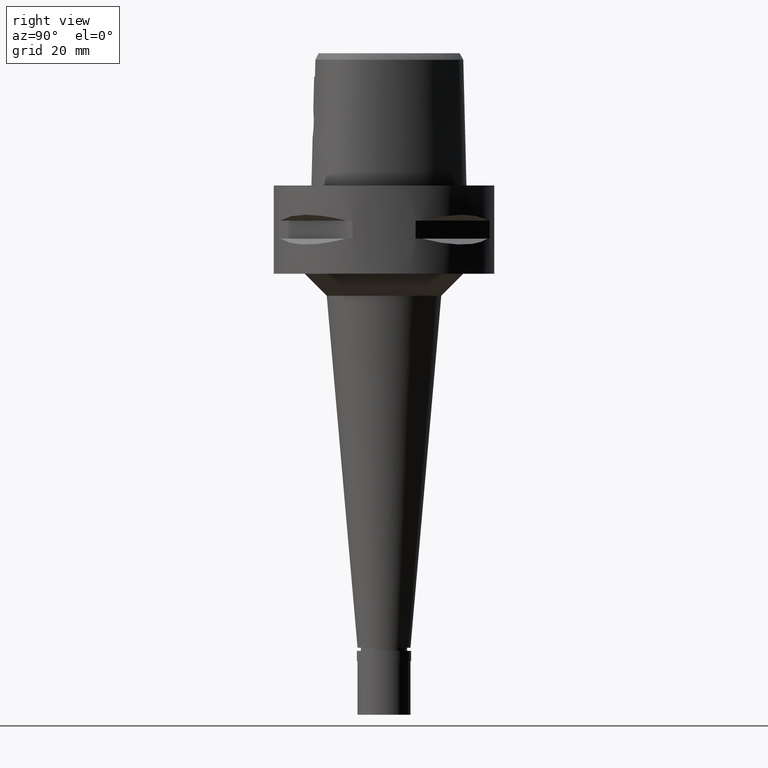
[diagram: clean part render]
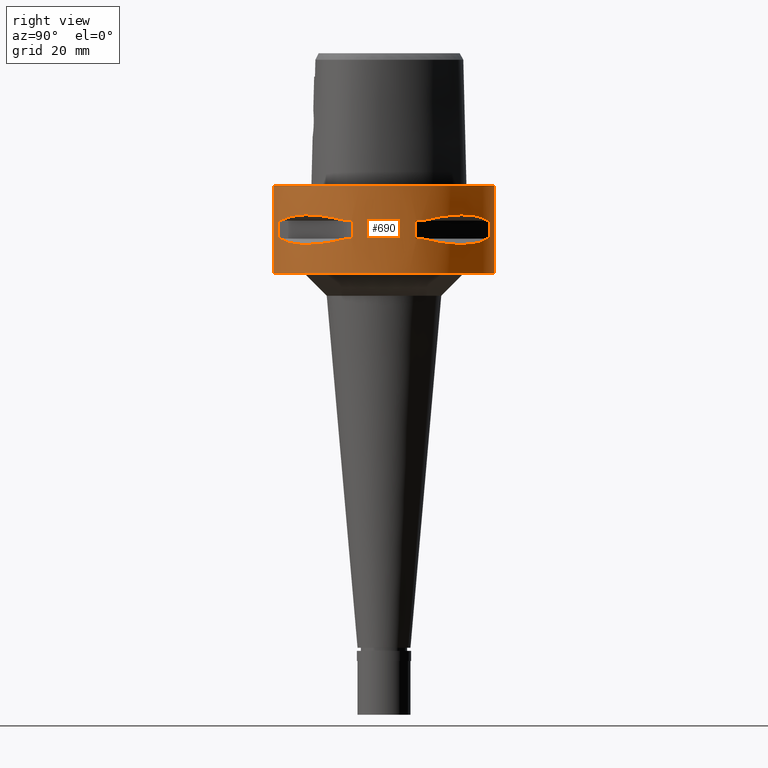
[diagram: same view with one face highlighted and labeled with its STEP entity id]
A machine part, right view. The second image highlights one B-rep face of the part: STEP entity #690.
In plain terms, the highlighted cylindrical surface (partial cylindrical patch) has radius 25 mm, axis along (0, 0, -1).
Its self-contained STEP definition (entity closure, byte-faithful):
#34 = CARTESIAN_POINT ( 'NONE',  ( 13.74471461761685198, 20.88268233906084248, -13.08031795579737455 ) ) ;
#55 = CARTESIAN_POINT ( 'NONE',  ( 21.09754014381971388, 13.41274673326716282, -13.03250796600833716 ) ) ;
#73 = CARTESIAN_POINT ( 'NONE',  ( 0.0000000000000000000, 1.295676313497999978E-14, -12.05000000000000071 ) ) ;
#135 = DIRECTION ( 'NONE',  ( 0.0000000000000000000, 0.0000000000000000000, 1.000000000000000000 ) ) ;
#143 = CARTESIAN_POINT ( 'NONE',  ( 0.0000000000000000000, -25.00000000000000000, 0.0000000000000000000 ) ) ;
#210 = CARTESIAN_POINT ( 'NONE',  ( 13.55971422200820520, -21.00321793043535479, -13.05400030967370206 ) ) ;
#237 = CIRCLE ( 'NONE', #3558, 24.99999999999999645 ) ;
#247 = VECTOR ( 'NONE', #3154, 1000.000000000000000 ) ;
#270 = CARTESIAN_POINT ( 'NONE',  ( 7.159921374230999724, -23.95277699797999915, -12.05000000000000071 ) ) ;
#283 = DIRECTION ( 'NONE',  ( 0.0000000000000000000, 1.000000000000000000, 0.0000000000000000000 ) ) ;
#322 = CARTESIAN_POINT ( 'NONE',  ( 23.45715880140000209, -8.646484890751999330, -7.949999999998000000 ) ) ;
#343 = ORIENTED_EDGE ( 'NONE', *, *, #4472, .T. ) ;
#352 = CARTESIAN_POINT ( 'NONE',  ( 23.13678124604550845, 9.515641234313701347, -12.27403800213050111 ) ) ;
#355 = VERTEX_POINT ( 'NONE', #270 ) ;
#388 = FACE_OUTER_BOUND ( 'NONE', #3745, .T. ) ;
#405 = CARTESIAN_POINT ( 'NONE',  ( 21.41803043591995959, 12.89853354823032738, -12.95342092614324869 ) ) ;
#417 = CARTESIAN_POINT ( 'NONE',  ( 7.159921374235000080, -23.95277699797999915, -7.950000000000000178 ) ) ;
#431 = DIRECTION ( 'NONE',  ( 0.9581110799190402094, 0.2863968549694120291, 0.0000000000000000000 ) ) ;
#502 = CIRCLE ( 'NONE', #2275, 24.99999999999999645 ) ;
#526 = VERTEX_POINT ( 'NONE', #4646 ) ;
#561 = B_SPLINE_CURVE_WITH_KNOTS ( 'NONE', 3,
 ( #4273, #606, #2033, #4312, #927, #2078, #3568, #2765, #3220, #991 ),
 .UNSPECIFIED., .F., .F.,
 ( 4, 2, 2, 2, 4 ),
 ( 0.0000000000000000000, 0.2500000000000000000, 0.5000000000000000000, 0.7500000000000000000, 1.000000000000000000 ),
 .UNSPECIFIED. ) ;
#606 = CARTESIAN_POINT ( 'NONE',  ( 10.36314631860327395, -22.82438450745536684, -7.507504930524173226 ) ) ;
#620 = VERTEX_POINT ( 'NONE', #810 ) ;
#631 = AXIS2_PLACEMENT_3D ( 'NONE', #4162, #135, #1218 ) ;
#633 = CARTESIAN_POINT ( 'NONE',  ( 0.0000000000000000000, 25.00000000000000000, 0.0000000000000000000 ) ) ;
#690 = ADVANCED_FACE ( 'NONE', ( #388, #4042, #2572 ), #1094, .T. ) ;
#721 = ORIENTED_EDGE ( 'NONE', *, *, #3770, .T. ) ;
#734 = DIRECTION ( 'NONE',  ( 0.0000000000000000000, -1.000000000000000000, 0.0000000000000000000 ) ) ;
#768 = CARTESIAN_POINT ( 'NONE',  ( 23.45715880140000209, 8.646484890756999775, -12.05000000000000071 ) ) ;
#797 = CARTESIAN_POINT ( 'NONE',  ( 13.67544437571146609, 20.92801700160250533, -13.07054629644086674 ) ) ;
#807 = CARTESIAN_POINT ( 'NONE',  ( 0.0000000000000000000, 1.295676313497999978E-14, -20.00000000000000000 ) ) ;
#810 = CARTESIAN_POINT ( 'NONE',  ( 0.0000000000000000000, -25.00000000000000000, 0.0000000000000000000 ) ) ;
#824 = CARTESIAN_POINT ( 'NONE',  ( 8.646484890751999330, 23.45715880140000209, -12.05000000000000071 ) ) ;
#853 = ORIENTED_EDGE ( 'NONE', *, *, #2896, .F. ) ;
#860 = CARTESIAN_POINT ( 'NONE',  ( 0.0000000000000000000, 25.00000000000000000, 0.0000000000000000000 ) ) ;
#888 = AXIS2_PLACEMENT_3D ( 'NONE', #73, #1608, #1561 ) ;
#915 = ORIENTED_EDGE ( 'NONE', *, *, #1397, .T. ) ;
#927 = CARTESIAN_POINT ( 'NONE',  ( 16.42437865150963816, -18.93096040781772871, -6.622505547251375191 ) ) ;
#991 = CARTESIAN_POINT ( 'NONE',  ( 23.45715880140000209, -8.646484890751999330, -7.949999999998000000 ) ) ;
#995 = CARTESIAN_POINT ( 'NONE',  ( 0.0000000000000000000, 1.295676313497999978E-14, 0.0000000000000000000 ) ) ;
#996 = DIRECTION ( 'NONE',  ( 0.0000000000000000000, 0.0000000000000000000, -1.000000000000000000 ) ) ;
#1010 = DIRECTION ( 'NONE',  ( 0.0000000000000000000, 0.0000000000000000000, -1.000000000000000000 ) ) ;
#1014 = AXIS2_PLACEMENT_3D ( 'NONE', #807, #4596, #3076 ) ;
#1016 = EDGE_CURVE ( 'NONE', #2160, #355, #2854, .T. ) ;
#1028 = VERTEX_POINT ( 'NONE', #2132 ) ;
#1043 = EDGE_CURVE ( 'NONE', #3849, #620, #2961, .T. ) ;
#1054 = VERTEX_POINT ( 'NONE', #1308 ) ;
#1084 = AXIS2_PLACEMENT_3D ( 'NONE', #3962, #1010, #2103 ) ;
#1094 = CYLINDRICAL_SURFACE ( 'NONE', #1410, 25.00000000000000000 ) ;
#1111 = CARTESIAN_POINT ( 'NONE',  ( 21.99328990740119139, -12.03062603421341770, -12.83394786307044022 ) ) ;
#1135 = CARTESIAN_POINT ( 'NONE',  ( 21.20561591939435786, 13.24197703503935486, -13.00691327926270446 ) ) ;
#1136 = DIRECTION ( 'NONE',  ( 0.0000000000000000000, 0.0000000000000000000, 1.000000000000000000 ) ) ;
#1157 = EDGE_CURVE ( 'NONE', #3984, #3000, #1573, .T. ) ;
#1160 = CARTESIAN_POINT ( 'NONE',  ( 21.82791133047632215, 12.20403021319857828, -12.83722430139150994 ) ) ;
#1165 = CARTESIAN_POINT ( 'NONE',  ( 7.159921374230999724, 23.95277699797999915, -12.05000000000000071 ) ) ;
#1185 = CARTESIAN_POINT ( 'NONE',  ( 10.36318218122701751, 22.82437128822296657, -7.507495686402388735 ) ) ;
#1218 = DIRECTION ( 'NONE',  ( 0.2863968549694120291, -0.9581110799190402094, 0.0000000000000000000 ) ) ;
#1223 = CARTESIAN_POINT ( 'NONE',  ( 0.0000000000000000000, 1.295676313497999978E-14, -12.05000000000000071 ) ) ;
#1270 = CIRCLE ( 'NONE', #888, 25.00000000000001066 ) ;
#1304 = CARTESIAN_POINT ( 'NONE',  ( 16.43106916202457057, -18.92421359264944769, -13.37747608848233760 ) ) ;
#1308 = CARTESIAN_POINT ( 'NONE',  ( 7.159921374235000080, 23.95277699797999915, -12.05000000000000071 ) ) ;
#1324 = CARTESIAN_POINT ( 'NONE',  ( 13.24197703503267931, -21.20561591939681634, -13.00691327926098495 ) ) ;
#1356 = CARTESIAN_POINT ( 'NONE',  ( 9.515641234297431694, -23.13678124605150188, -12.27403800212630536 ) ) ;
#1385 = EDGE_CURVE ( 'NONE', #620, #1028, #3445, .T. ) ;
#1394 = CARTESIAN_POINT ( 'NONE',  ( 20.97251445226583755, -13.60713573003076071, -13.06082541678112641 ) ) ;
#1397 = EDGE_CURVE ( 'NONE', #2321, #355, #1270, .T. ) ;
#1399 = DIRECTION ( 'NONE',  ( 0.0000000000000000000, 0.0000000000000000000, -1.000000000000000000 ) ) ;
#1410 = AXIS2_PLACEMENT_3D ( 'NONE', #2650, #1868, #734 ) ;
#1425 = DIRECTION ( 'NONE',  ( 0.0000000000000000000, 0.0000000000000000000, 1.000000000000000000 ) ) ;
#1461 = CARTESIAN_POINT ( 'NONE',  ( 13.62920640916679993, 20.95817024473859291, -13.06397973560673265 ) ) ;
#1496 = VERTEX_POINT ( 'NONE', #3112 ) ;
#1519 = CARTESIAN_POINT ( 'NONE',  ( 12.03062603423778754, 21.99328990739221013, -12.83394786307672675 ) ) ;
#1542 = CARTESIAN_POINT ( 'NONE',  ( 13.60713573003037880, 20.97251445226597966, -13.06082541678103404 ) ) ;
#1554 = AXIS2_PLACEMENT_3D ( 'NONE', #4732, #1425, #4777 ) ;
#1561 = DIRECTION ( 'NONE',  ( 0.3458593956303108730, -0.9382863520558295534, 0.0000000000000000000 ) ) ;
#1567 = CARTESIAN_POINT ( 'NONE',  ( 18.93096040781766831, 16.42437865150973408, -6.622505547255374658 ) ) ;
#1568 = CARTESIAN_POINT ( 'NONE',  ( 0.0000000000000000000, 1.295676313497999978E-14, -7.950000000000000178 ) ) ;
#1573 = CIRCLE ( 'NONE', #2887, 25.00000000000001066 ) ;
#1608 = DIRECTION ( 'NONE',  ( 0.0000000000000000000, 0.0000000000000000000, -1.000000000000000000 ) ) ;
#1622 = VERTEX_POINT ( 'NONE', #3257 ) ;
#1627 = VERTEX_POINT ( 'NONE', #4380 ) ;
#1647 = CARTESIAN_POINT ( 'NONE',  ( 13.41274673326371314, -21.09754014382099285, -13.03250796600744721 ) ) ;
#1676 = DIRECTION ( 'NONE',  ( 0.3458593956303108730, 0.9382863520558295534, 0.0000000000000000000 ) ) ;
#1690 = CARTESIAN_POINT ( 'NONE',  ( 0.0000000000000000000, 1.295676313497999978E-14, -12.05000000000000071 ) ) ;
#1696 = VERTEX_POINT ( 'NONE', #322 ) ;
#1735 = EDGE_CURVE ( 'NONE', #3753, #2692, #3231, .T. ) ;
#1751 = EDGE_CURVE ( 'NONE', #4287, #3984, #2834, .T. ) ;
#1759 = VERTEX_POINT ( 'NONE', #4769 ) ;
#1832 = CARTESIAN_POINT ( 'NONE',  ( 14.85488513038957592, 20.11654071401955335, -13.22076716108393413 ) ) ;
#1855 = CARTESIAN_POINT ( 'NONE',  ( 21.05082155772089436, 13.48572973711263323, -13.04323036965343618 ) ) ;
#1863 = ORIENTED_EDGE ( 'NONE', *, *, #1751, .T. ) ;
#1868 = DIRECTION ( 'NONE',  ( 0.0000000000000000000, 0.0000000000000000000, -1.000000000000000000 ) ) ;
#1883 = CARTESIAN_POINT ( 'NONE',  ( 21.01958685664017068, 13.53433973752500918, -13.05032380590188446 ) ) ;
#1905 = CARTESIAN_POINT ( 'NONE',  ( 20.02826730452214932, 15.06560254769159712, -13.27075471794772277 ) ) ;
#1943 = CIRCLE ( 'NONE', #631, 24.99999999999999645 ) ;
#1955 = DIRECTION ( 'NONE',  ( 0.0000000000000000000, 0.0000000000000000000, -1.000000000000000000 ) ) ;
#1998 = EDGE_LOOP ( 'NONE', ( #3221, #853, #4648, #3674, #721, #4456, #4563, #1863 ) ) ;
#1999 = EDGE_CURVE ( 'NONE', #526, #4287, #502, .T. ) ;
#2033 = CARTESIAN_POINT ( 'NONE',  ( 11.99631184310672616, -22.00754773658296060, -7.175632472890621116 ) ) ;
#2057 = CARTESIAN_POINT ( 'NONE',  ( 20.11654071402723432, -14.85488513038430192, -13.22076716108491290 ) ) ;
#2078 = CARTESIAN_POINT ( 'NONE',  ( 18.93096040781768963, -16.42437865150967369, -6.622496303225266168 ) ) ;
#2097 = VERTEX_POINT ( 'NONE', #2181 ) ;
#2099 = CIRCLE ( 'NONE', #1014, 25.00000000000000000 ) ;
#2103 = DIRECTION ( 'NONE',  ( 0.9581110799190402094, -0.2863968549694120291, 0.0000000000000000000 ) ) ;
#2117 = VECTOR ( 'NONE', #2702, 1000.000000000000000 ) ;
#2132 = CARTESIAN_POINT ( 'NONE',  ( 0.0000000000000000000, -25.00000000000000000, -20.00000000000000000 ) ) ;
#2143 = ORIENTED_EDGE ( 'NONE', *, *, #4157, .F. ) ;
#2160 = VERTEX_POINT ( 'NONE', #417 ) ;
#2181 = CARTESIAN_POINT ( 'NONE',  ( 8.646484890751999330, -23.45715880140000209, -7.949999999998000000 ) ) ;
#2223 = CARTESIAN_POINT ( 'NONE',  ( 20.88268233906207172, -13.74471461761599400, -13.08031795579753087 ) ) ;
#2251 = CIRCLE ( 'NONE', #2793, 25.00000000000001066 ) ;
#2270 = CARTESIAN_POINT ( 'NONE',  ( 11.99636231264038777, 22.00752022557070120, -7.175618606705943314 ) ) ;
#2275 = AXIS2_PLACEMENT_3D ( 'NONE', #1568, #1136, #431 ) ;
#2279 = VECTOR ( 'NONE', #4520, 1000.000000000000000 ) ;
#2321 = VERTEX_POINT ( 'NONE', #2329 ) ;
#2329 = CARTESIAN_POINT ( 'NONE',  ( 8.646484890756999775, -23.45715880140000209, -12.05000000000000071 ) ) ;
#2450 = CARTESIAN_POINT ( 'NONE',  ( 12.89853354821786624, -21.41803043592453548, -12.95342092614003349 ) ) ;
#2465 = ORIENTED_EDGE ( 'NONE', *, *, #1016, .F. ) ;
#2481 = CIRCLE ( 'NONE', #1084, 24.99999999999999645 ) ;
#2539 = CARTESIAN_POINT ( 'NONE',  ( 23.45715880140000209, 8.646484890751999330, -7.950000000002000355 ) ) ;
#2558 = CIRCLE ( 'NONE', #1554, 25.00000000000001066 ) ;
#2559 = CARTESIAN_POINT ( 'NONE',  ( 22.58788056560981516, 10.78455809748034788, -12.56798337783676267 ) ) ;
#2572 = FACE_BOUND ( 'NONE', #4232, .T. ) ;
#2576 = EDGE_CURVE ( 'NONE', #3849, #2712, #3968, .T. ) ;
#2591 = CARTESIAN_POINT ( 'NONE',  ( 20.77616787493668937, -13.90573822667970916, -13.10257122103325145 ) ) ;
#2614 = CARTESIAN_POINT ( 'NONE',  ( 21.00321793043583796, 13.55971422200765630, -13.05400030967367897 ) ) ;
#2650 = CARTESIAN_POINT ( 'NONE',  ( 0.0000000000000000000, 1.295676313497999978E-14, 5.799999999999999822 ) ) ;
#2692 = VERTEX_POINT ( 'NONE', #4090 ) ;
#2702 = DIRECTION ( 'NONE',  ( 0.0000000000000000000, 0.0000000000000000000, -1.000000000000000000 ) ) ;
#2712 = VERTEX_POINT ( 'NONE', #4729 ) ;
#2746 = VECTOR ( 'NONE', #996, 1000.000000000000000 ) ;
#2755 = DIRECTION ( 'NONE',  ( 0.0000000000000000000, 0.0000000000000000000, -1.000000000000000000 ) ) ;
#2765 = CARTESIAN_POINT ( 'NONE',  ( 22.00752022557064791, -11.99636231264041797, -7.175618606701942959 ) ) ;
#2784 = CARTESIAN_POINT ( 'NONE',  ( 18.30096971348435630, -17.05439749817190176, -13.37751056790094850 ) ) ;
#2793 = AXIS2_PLACEMENT_3D ( 'NONE', #1223, #2755, #3110 ) ;
#2805 = DIRECTION ( 'NONE',  ( 0.2863968549694120291, 0.9581110799190402094, 0.0000000000000000000 ) ) ;
#2816 = B_SPLINE_CURVE_WITH_KNOTS ( 'NONE', 3,
 ( #4615, #1356, #4250, #4658, #2450, #1324, #1647, #3127, #4593, #210, #4295, #1304, #2784, #3892, #2057, #3525, #2591, #2223, #4085, #2871, #1394, #1111, #4360, #2922 ),
 .UNSPECIFIED., .F., .F.,
 ( 4, 1, 1, 1, 1, 1, 2, 2, 2, 1, 1, 1, 1, 1, 2, 2, 4 ),
 ( 0.0000000000000000000, 0.1250000000000068834, 0.1875000000000101308, 0.2187500000000117406, 0.2343750000000125733, 0.2421875000000129341, 0.2460937500000130174, 0.2500000000000131006, 0.5000000000000111022, 0.6250000000000101030, 0.6875000000000099920, 0.7187500000000099920, 0.7343750000000099920, 0.7421875000000098810, 0.7460937500000098810, 0.7500000000000098810, 1.000000000000000000 ),
 .UNSPECIFIED. ) ;
#2827 = ORIENTED_EDGE ( 'NONE', *, *, #2576, .F. ) ;
#2834 = B_SPLINE_CURVE_WITH_KNOTS ( 'NONE', 3,
 ( #4057, #4083, #4108, #4028, #1567, #2993, #4409, #2270, #1185, #3016 ),
 .UNSPECIFIED., .F., .F.,
 ( 4, 2, 2, 2, 4 ),
 ( 0.0000000000000000000, 0.2500000000000000000, 0.5000000000000000000, 0.7500000000000000000, 1.000000000000000000 ),
 .UNSPECIFIED. ) ;
#2854 = LINE ( 'NONE', #4254, #247 ) ;
#2871 = CARTESIAN_POINT ( 'NONE',  ( 20.95817024473895174, -13.62920640916654591, -13.06397973560678061 ) ) ;
#2887 = AXIS2_PLACEMENT_3D ( 'NONE', #3243, #3530, #1676 ) ;
#2896 = EDGE_CURVE ( 'NONE', #1054, #3000, #3457, .T. ) ;
#2922 = CARTESIAN_POINT ( 'NONE',  ( 23.45715880140000209, -8.646484890751999330, -12.05000000000000071 ) ) ;
#2943 = VECTOR ( 'NONE', #3158, 1000.000000000000000 ) ;
#2961 = CIRCLE ( 'NONE', #3811, 25.00000000000000000 ) ;
#2993 = CARTESIAN_POINT ( 'NONE',  ( 16.42437865150966303, 18.93096040781772160, -6.622496303229267411 ) ) ;
#3000 = VERTEX_POINT ( 'NONE', #3434 ) ;
#3016 = CARTESIAN_POINT ( 'NONE',  ( 8.646484890751999330, 23.45715880140000209, -7.950000000002000355 ) ) ;
#3075 = ORIENTED_EDGE ( 'NONE', *, *, #4371, .T. ) ;
#3076 = DIRECTION ( 'NONE',  ( 0.0000000000000000000, -1.000000000000000000, 0.0000000000000000000 ) ) ;
#3110 = DIRECTION ( 'NONE',  ( 0.9382863520558295534, 0.3458593956303108730, 0.0000000000000000000 ) ) ;
#3112 = CARTESIAN_POINT ( 'NONE',  ( 23.95277699797999915, -7.159921374230999724, -7.950000000000000178 ) ) ;
#3125 = ORIENTED_EDGE ( 'NONE', *, *, #4493, .T. ) ;
#3127 = CARTESIAN_POINT ( 'NONE',  ( 13.48572973711064193, -21.05082155772163688, -13.04323036965292637 ) ) ;
#3140 = EDGE_CURVE ( 'NONE', #2097, #1696, #561, .T. ) ;
#3154 = DIRECTION ( 'NONE',  ( 0.0000000000000000000, 0.0000000000000000000, -1.000000000000000000 ) ) ;
#3158 = DIRECTION ( 'NONE',  ( 0.0000000000000000000, 0.0000000000000000000, 1.000000000000000000 ) ) ;
#3176 = LINE ( 'NONE', #4644, #2943 ) ;
#3220 = CARTESIAN_POINT ( 'NONE',  ( 22.82437128822292394, -10.36318218122705304, -7.507495686398388379 ) ) ;
#3221 = ORIENTED_EDGE ( 'NONE', *, *, #1157, .T. ) ;
#3229 = ORIENTED_EDGE ( 'NONE', *, *, #3140, .T. ) ;
#3231 = B_SPLINE_CURVE_WITH_KNOTS ( 'NONE', 3,
 ( #768, #352, #2559, #1160, #405, #1135, #55, #1855, #1883, #2614, #1905, #3330, #3739, #3762, #1832, #3356, #3306, #34, #797, #1461, #1542, #1519, #4134, #824 ),
 .UNSPECIFIED., .F., .F.,
 ( 4, 1, 1, 1, 1, 1, 2, 2, 2, 1, 1, 1, 1, 1, 2, 2, 4 ),
 ( 0.0000000000000000000, 0.1249999999999982236, 0.1874999999999974465, 0.2187499999999970302, 0.2343749999999969469, 0.2421874999999968081, 0.2460937499999968359, 0.2499999999999968914, 0.4999999999999973355, 0.6249999999999973355, 0.6874999999999976685, 0.7187499999999978906, 0.7343749999999980016, 0.7421874999999980016, 0.7460937499999978906, 0.7499999999999978906, 1.000000000000000000 ),
 .UNSPECIFIED. ) ;
#3243 = CARTESIAN_POINT ( 'NONE',  ( 0.0000000000000000000, 1.295676313497999978E-14, -7.950000000000000178 ) ) ;
#3257 = CARTESIAN_POINT ( 'NONE',  ( 23.95277699797999915, -7.159921374235000080, -12.05000000000000071 ) ) ;
#3297 = EDGE_CURVE ( 'NONE', #1622, #1759, #2481, .T. ) ;
#3306 = CARTESIAN_POINT ( 'NONE',  ( 13.90573822668135406, 20.77616787493428774, -13.10257122103294058 ) ) ;
#3330 = CARTESIAN_POINT ( 'NONE',  ( 18.92421359264142211, 16.43106916203626611, -13.37747608848383329 ) ) ;
#3356 = CARTESIAN_POINT ( 'NONE',  ( 14.22535762328483067, 20.56020460723039278, -13.14488865845230592 ) ) ;
#3382 = EDGE_CURVE ( 'NONE', #2321, #1759, #2816, .T. ) ;
#3401 = LINE ( 'NONE', #3765, #3867 ) ;
#3434 = CARTESIAN_POINT ( 'NONE',  ( 7.159921374230999724, 23.95277699797999915, -7.950000000000000178 ) ) ;
#3445 = LINE ( 'NONE', #143, #2117 ) ;
#3457 = LINE ( 'NONE', #1165, #2279 ) ;
#3460 = ORIENTED_EDGE ( 'NONE', *, *, #3382, .F. ) ;
#3523 = DIRECTION ( 'NONE',  ( 0.0000000000000000000, 0.0000000000000000000, -1.000000000000000000 ) ) ;
#3525 = CARTESIAN_POINT ( 'NONE',  ( 20.56020460723486565, -14.22535762328174691, -13.14488865845287080 ) ) ;
#3530 = DIRECTION ( 'NONE',  ( 0.0000000000000000000, 0.0000000000000000000, 1.000000000000000000 ) ) ;
#3558 = AXIS2_PLACEMENT_3D ( 'NONE', #1690, #3523, #2805 ) ;
#3568 = CARTESIAN_POINT ( 'NONE',  ( 20.06074199765220101, -15.02698525049765088, -6.733118915115382741 ) ) ;
#3586 = EDGE_CURVE ( 'NONE', #526, #1627, #3401, .T. ) ;
#3674 = ORIENTED_EDGE ( 'NONE', *, *, #1735, .F. ) ;
#3739 = CARTESIAN_POINT ( 'NONE',  ( 17.05439749817592343, 18.30096971347850499, -13.37751056790020598 ) ) ;
#3745 = EDGE_LOOP ( 'NONE', ( #4065, #3847, #343, #2827 ) ) ;
#3753 = VERTEX_POINT ( 'NONE', #4328 ) ;
#3762 = CARTESIAN_POINT ( 'NONE',  ( 16.07509500019029502, 19.18226349638565509, -13.33749867751885532 ) ) ;
#3765 = CARTESIAN_POINT ( 'NONE',  ( 23.95277699797999915, 7.159921374230999724, -7.950000000000000178 ) ) ;
#3770 = EDGE_CURVE ( 'NONE', #3753, #1627, #2251, .T. ) ;
#3811 = AXIS2_PLACEMENT_3D ( 'NONE', #995, #1399, #283 ) ;
#3847 = ORIENTED_EDGE ( 'NONE', *, *, #1385, .T. ) ;
#3849 = VERTEX_POINT ( 'NONE', #860 ) ;
#3867 = VECTOR ( 'NONE', #1955, 1000.000000000000000 ) ;
#3892 = CARTESIAN_POINT ( 'NONE',  ( 19.18226349639588690, -16.07509500018327131, -13.33749867752016449 ) ) ;
#3962 = CARTESIAN_POINT ( 'NONE',  ( 0.0000000000000000000, 1.295676313497999978E-14, -12.05000000000000071 ) ) ;
#3968 = LINE ( 'NONE', #633, #2746 ) ;
#3984 = VERTEX_POINT ( 'NONE', #4669 ) ;
#4028 = CARTESIAN_POINT ( 'NONE',  ( 20.06077645874980675, 15.02693924547213378, -6.733132781308060366 ) ) ;
#4042 = FACE_BOUND ( 'NONE', #1998, .T. ) ;
#4057 = CARTESIAN_POINT ( 'NONE',  ( 23.45715880140000209, 8.646484890751999330, -7.950000000002000355 ) ) ;
#4065 = ORIENTED_EDGE ( 'NONE', *, *, #1043, .T. ) ;
#4083 = CARTESIAN_POINT ( 'NONE',  ( 22.82438450745534908, 10.36314631860334323, -7.507504930528175358 ) ) ;
#4085 = CARTESIAN_POINT ( 'NONE',  ( 20.92801700160322298, -13.67544437571097404, -13.07054629644096444 ) ) ;
#4090 = CARTESIAN_POINT ( 'NONE',  ( 8.646484890751999330, 23.45715880140000209, -12.05000000000000071 ) ) ;
#4108 = CARTESIAN_POINT ( 'NONE',  ( 22.00754773658294994, 11.99631184310677234, -7.175632472894622360 ) ) ;
#4134 = CARTESIAN_POINT ( 'NONE',  ( 10.38516041958474645, 22.81626994451295332, -12.49816953211793802 ) ) ;
#4157 = EDGE_CURVE ( 'NONE', #1622, #1496, #3176, .T. ) ;
#4162 = CARTESIAN_POINT ( 'NONE',  ( 0.0000000000000000000, 1.295676313497999978E-14, -7.950000000000000178 ) ) ;
#4193 = ORIENTED_EDGE ( 'NONE', *, *, #3297, .T. ) ;
#4232 = EDGE_LOOP ( 'NONE', ( #3075, #2143, #4193, #3460, #915, #2465, #3125, #3229 ) ) ;
#4250 = CARTESIAN_POINT ( 'NONE',  ( 10.78455809745186755, -22.58788056562029922, -12.56798337782941566 ) ) ;
#4254 = CARTESIAN_POINT ( 'NONE',  ( 7.159921374230999724, -23.95277699797999915, -7.950000000000000178 ) ) ;
#4273 = CARTESIAN_POINT ( 'NONE',  ( 8.646484890751999330, -23.45715880140000209, -7.949999999998000000 ) ) ;
#4287 = VERTEX_POINT ( 'NONE', #2539 ) ;
#4295 = CARTESIAN_POINT ( 'NONE',  ( 15.06560254765663132, -20.02826730455345583, -13.27075471794622885 ) ) ;
#4312 = CARTESIAN_POINT ( 'NONE',  ( 15.02693924547208582, -20.06077645874982096, -6.733132781304060011 ) ) ;
#4328 = CARTESIAN_POINT ( 'NONE',  ( 23.45715880140000209, 8.646484890756999775, -12.05000000000000071 ) ) ;
#4360 = CARTESIAN_POINT ( 'NONE',  ( 22.81626994452193458, -10.38516041956038727, -12.49816953211166037 ) ) ;
#4371 = EDGE_CURVE ( 'NONE', #1696, #1496, #2558, .T. ) ;
#4380 = CARTESIAN_POINT ( 'NONE',  ( 23.95277699797999915, 7.159921374230999724, -12.05000000000000071 ) ) ;
#4409 = CARTESIAN_POINT ( 'NONE',  ( 15.02698525049764200, 20.06074199765222943, -6.733118915119383097 ) ) ;
#4456 = ORIENTED_EDGE ( 'NONE', *, *, #3586, .F. ) ;
#4472 = EDGE_CURVE ( 'NONE', #1028, #2712, #2099, .T. ) ;
#4493 = EDGE_CURVE ( 'NONE', #2160, #2097, #1943, .T. ) ;
#4520 = DIRECTION ( 'NONE',  ( 0.0000000000000000000, 0.0000000000000000000, 1.000000000000000000 ) ) ;
#4563 = ORIENTED_EDGE ( 'NONE', *, *, #1999, .T. ) ;
#4593 = CARTESIAN_POINT ( 'NONE',  ( 13.53433973752400554, -21.01958685664054372, -13.05032380590162333 ) ) ;
#4596 = DIRECTION ( 'NONE',  ( 0.0000000000000000000, 0.0000000000000000000, 1.000000000000000000 ) ) ;
#4615 = CARTESIAN_POINT ( 'NONE',  ( 8.646484890756999775, -23.45715880140000209, -12.05000000000000071 ) ) ;
#4644 = CARTESIAN_POINT ( 'NONE',  ( 23.95277699797999915, -7.159921374230999724, -12.05000000000000071 ) ) ;
#4646 = CARTESIAN_POINT ( 'NONE',  ( 23.95277699797999915, 7.159921374235000080, -7.950000000000000178 ) ) ;
#4648 = ORIENTED_EDGE ( 'NONE', *, *, #4755, .T. ) ;
#4658 = CARTESIAN_POINT ( 'NONE',  ( 12.20403021317722292, -21.82791133048418786, -12.83722430138600323 ) ) ;
#4669 = CARTESIAN_POINT ( 'NONE',  ( 8.646484890751999330, 23.45715880140000209, -7.950000000002000355 ) ) ;
#4729 = CARTESIAN_POINT ( 'NONE',  ( 0.0000000000000000000, 25.00000000000000000, -20.00000000000000000 ) ) ;
#4732 = CARTESIAN_POINT ( 'NONE',  ( 0.0000000000000000000, 1.295676313497999978E-14, -7.950000000000000178 ) ) ;
#4755 = EDGE_CURVE ( 'NONE', #1054, #2692, #237, .T. ) ;
#4769 = CARTESIAN_POINT ( 'NONE',  ( 23.45715880140000209, -8.646484890751999330, -12.05000000000000071 ) ) ;
#4777 = DIRECTION ( 'NONE',  ( 0.9382863520558295534, -0.3458593956303108730, 0.0000000000000000000 ) ) ;